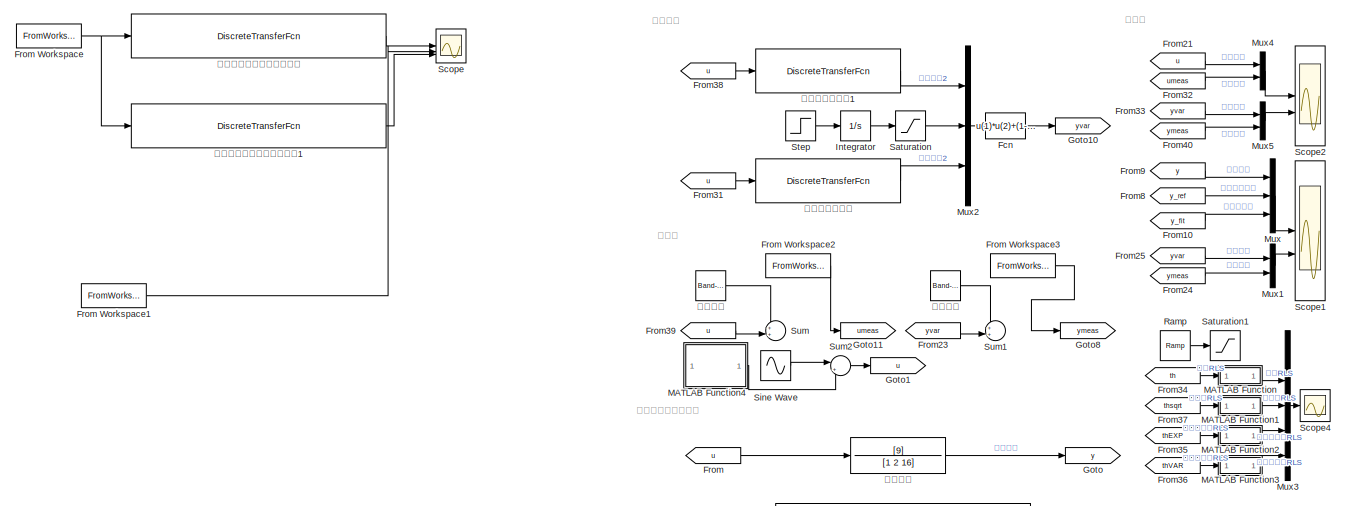
[diagram: root canvas - part 1/2, full width, top band]
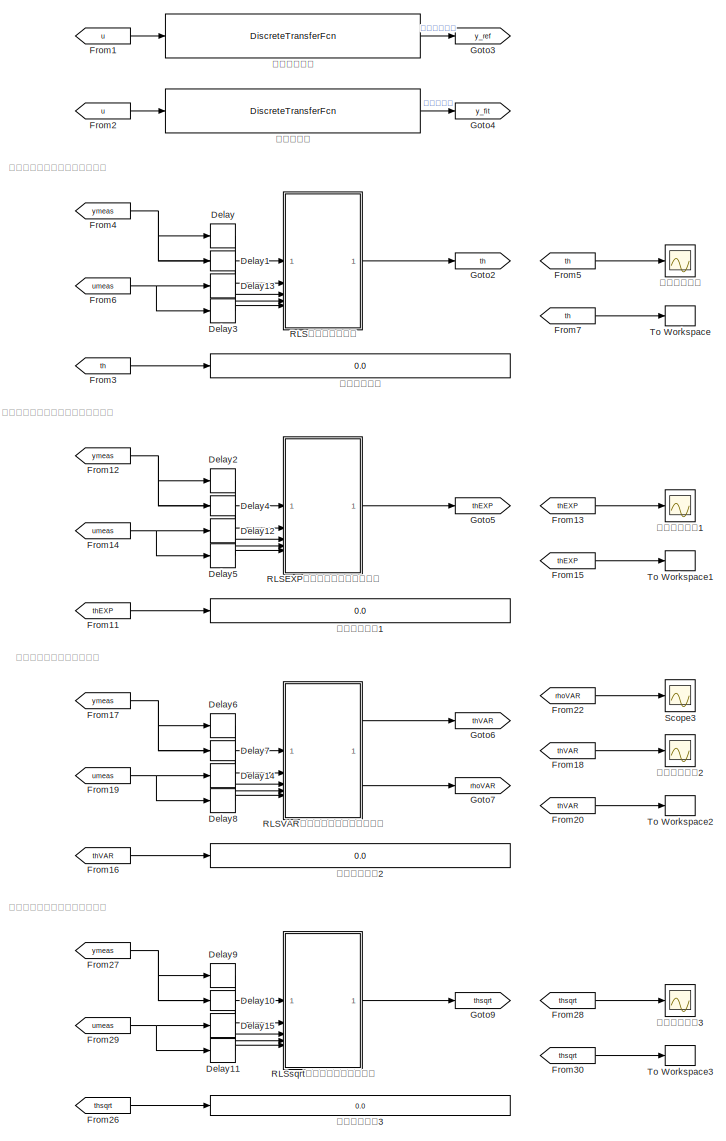
[diagram: root canvas - part 2/2, middle right region]
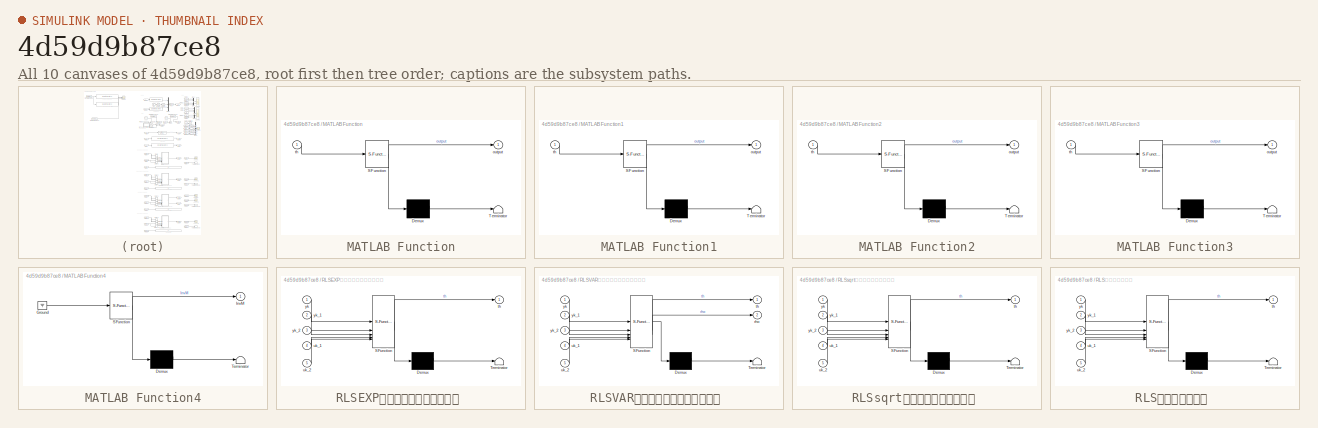
[diagram: thumbnail index - all 10 canvases of the model, root first then tree order]
MODEL slx_4d59d9b87ce8
KIND model
CONFIG AbsTol = auto
CONFIG EnableMultiTasking = off
CONFIG FixedStep = auto
CONFIG MaxStep = auto
CONFIG MinStep = auto
CONFIG RelTol = 1e-3
CONFIG SampleTimeConstraint = Unconstrained
CONFIG SolverName = VariableStepAuto
CONFIG StartTime = 0.0
CONFIG StopTime = 40
BLOCK [Delay] Delay
  DelayLength = 1
  InputPortMap = u0
  SampleTime = 0.01
BLOCK [Delay] Delay1
  InputPortMap = u0
  SampleTime = 0.01
BLOCK [Delay] Delay10
  InputPortMap = u0
  SampleTime = 0.01
BLOCK [Delay] Delay11
  InputPortMap = u0
  SampleTime = 0.01
BLOCK [Delay] Delay12
  DelayLength = 1
  InputPortMap = u0
  SampleTime = 0.01
BLOCK [Delay] Delay13
  DelayLength = 1
  InputPortMap = u0
  SampleTime = 0.01
BLOCK [Delay] Delay14
  DelayLength = 1
  InputPortMap = u0
  SampleTime = 0.01
BLOCK [Delay] Delay15
  DelayLength = 1
  InputPortMap = u0
  SampleTime = 0.01
BLOCK [Delay] Delay2
  DelayLength = 1
  InputPortMap = u0
  SampleTime = 0.01
BLOCK [Delay] Delay3
  InputPortMap = u0
  SampleTime = 0.01
BLOCK [Delay] Delay4
  InputPortMap = u0
  SampleTime = 0.01
BLOCK [Delay] Delay5
  InputPortMap = u0
  SampleTime = 0.01
BLOCK [Delay] Delay6
  DelayLength = 1
  InputPortMap = u0
  SampleTime = 0.01
BLOCK [Delay] Delay7
  InputPortMap = u0
  SampleTime = 0.01
BLOCK [Delay] Delay8
  InputPortMap = u0
  SampleTime = 0.01
BLOCK [Delay] Delay9
  DelayLength = 1
  InputPortMap = u0
  SampleTime = 0.01
BLOCK [Fcn] Fcn
  Expr = u(1)*u(2)+(1-u(2))*u(3)
BLOCK [From] From
  GotoTag = u
BLOCK [FromWorkspace] From Workspace
  VariableName = acc
BLOCK [FromWorkspace] From Workspace1
  VariableName = vel
BLOCK [FromWorkspace] From Workspace2
  VariableName = acc
BLOCK [FromWorkspace] From Workspace3
  VariableName = vel
BLOCK [From] From1
  GotoTag = u
BLOCK [From] From10
  GotoTag = y_fit
BLOCK [From] From11
  GotoTag = thEXP
BLOCK [From] From12
  GotoTag = ymeas
BLOCK [From] From13
  GotoTag = thEXP
BLOCK [From] From14
  GotoTag = umeas
BLOCK [From] From15
  GotoTag = thEXP
BLOCK [From] From16
  GotoTag = thVAR
BLOCK [From] From17
  GotoTag = ymeas
BLOCK [From] From18
  GotoTag = thVAR
BLOCK [From] From19
  GotoTag = umeas
BLOCK [From] From2
  GotoTag = u
BLOCK [From] From20
  GotoTag = thVAR
BLOCK [From] From21
  GotoTag = u
BLOCK [From] From22
  GotoTag = rhoVAR
BLOCK [From] From23
  GotoTag = yvar
BLOCK [From] From24
  GotoTag = ymeas
BLOCK [From] From25
  GotoTag = yvar
BLOCK [From] From26
  GotoTag = thsqrt
BLOCK [From] From27
  GotoTag = ymeas
BLOCK [From] From28
  GotoTag = thsqrt
BLOCK [From] From29
  GotoTag = umeas
BLOCK [From] From3
  GotoTag = th
BLOCK [From] From30
  GotoTag = thsqrt
BLOCK [From] From31
  GotoTag = u
BLOCK [From] From32
  GotoTag = umeas
BLOCK [From] From33
  GotoTag = yvar
BLOCK [From] From34
  GotoTag = th
BLOCK [From] From35
  GotoTag = thEXP
BLOCK [From] From36
  GotoTag = thVAR
BLOCK [From] From37
  GotoTag = thsqrt
BLOCK [From] From38
  GotoTag = u
BLOCK [From] From39
  GotoTag = u
BLOCK [From] From4
  GotoTag = ymeas
BLOCK [From] From40
  GotoTag = ymeas
BLOCK [From] From5
  GotoTag = th
BLOCK [From] From6
  GotoTag = umeas
BLOCK [From] From7
  GotoTag = th
BLOCK [From] From8
  GotoTag = y_ref
BLOCK [From] From9
  GotoTag = y
BLOCK [Goto] Goto
  GotoTag = y
BLOCK [Goto] Goto1
  GotoTag = u
BLOCK [Goto] Goto10
  GotoTag = yvar
BLOCK [Goto] Goto11
  GotoTag = umeas
BLOCK [Goto] Goto2
  GotoTag = th
BLOCK [Goto] Goto3
  GotoTag = y_ref
BLOCK [Goto] Goto4
  GotoTag = y_fit
BLOCK [Goto] Goto5
  GotoTag = thEXP
BLOCK [Goto] Goto6
  GotoTag = thVAR
BLOCK [Goto] Goto7
  GotoTag = rhoVAR
BLOCK [Goto] Goto8
  GotoTag = ymeas
BLOCK [Goto] Goto9
  GotoTag = thsqrt
BLOCK [Integrator] Integrator
BLOCK [SubSystem] MATLAB Function
  ErrorFcn = Stateflow.Translate.translate
  PermitHierarchicalResolution = ExplicitOnly
  SFBlockType = MATLAB Function
  TreatAsAtomicUnit = on
BLOCK [Demux] MATLAB Function/ Demux 
  Outputs = 1
BLOCK [S-Function] MATLAB Function/ SFunction 
  EnableBusSupport = on
  FunctionName = sf_sfun
  PortCounts = [1 2]
  SFcnIsStateOwnerBlock = off
  SFunctionDeploymentMode = off
  Tag = Stateflow S-Function 5
BLOCK [Terminator] MATLAB Function/ Terminator 
BLOCK [Outport] MATLAB Function/output
  VectorParamsAs1DForOutWhenUnconnected = off
BLOCK [Inport] MATLAB Function/th
BLOCK [SubSystem] MATLAB Function1
  ErrorFcn = Stateflow.Translate.translate
  PermitHierarchicalResolution = ExplicitOnly
  SFBlockType = MATLAB Function
  TreatAsAtomicUnit = on
BLOCK [Demux] MATLAB Function1/ Demux 
  Outputs = 1
BLOCK [S-Function] MATLAB Function1/ SFunction 
  EnableBusSupport = on
  FunctionName = sf_sfun
  PortCounts = [1 2]
  SFcnIsStateOwnerBlock = off
  SFunctionDeploymentMode = off
  Tag = Stateflow S-Function 6
BLOCK [Terminator] MATLAB Function1/ Terminator 
BLOCK [Outport] MATLAB Function1/output
  VectorParamsAs1DForOutWhenUnconnected = off
BLOCK [Inport] MATLAB Function1/th
BLOCK [SubSystem] MATLAB Function2
  ErrorFcn = Stateflow.Translate.translate
  PermitHierarchicalResolution = ExplicitOnly
  SFBlockType = MATLAB Function
  TreatAsAtomicUnit = on
BLOCK [Demux] MATLAB Function2/ Demux 
  Outputs = 1
BLOCK [S-Function] MATLAB Function2/ SFunction 
  EnableBusSupport = on
  FunctionName = sf_sfun
  PortCounts = [1 2]
  SFcnIsStateOwnerBlock = off
  SFunctionDeploymentMode = off
  Tag = Stateflow S-Function 7
BLOCK [Terminator] MATLAB Function2/ Terminator 
BLOCK [Outport] MATLAB Function2/output
  VectorParamsAs1DForOutWhenUnconnected = off
BLOCK [Inport] MATLAB Function2/th
BLOCK [SubSystem] MATLAB Function3
  ErrorFcn = Stateflow.Translate.translate
  PermitHierarchicalResolution = ExplicitOnly
  SFBlockType = MATLAB Function
  TreatAsAtomicUnit = on
BLOCK [Demux] MATLAB Function3/ Demux 
  Outputs = 1
BLOCK [S-Function] MATLAB Function3/ SFunction 
  EnableBusSupport = on
  FunctionName = sf_sfun
  PortCounts = [1 2]
  SFcnIsStateOwnerBlock = off
  SFunctionDeploymentMode = off
  Tag = Stateflow S-Function 8
BLOCK [Terminator] MATLAB Function3/ Terminator 
BLOCK [Outport] MATLAB Function3/output
  VectorParamsAs1DForOutWhenUnconnected = off
BLOCK [Inport] MATLAB Function3/th
BLOCK [SubSystem] MATLAB Function4
  ErrorFcn = Stateflow.Translate.translate
  PermitHierarchicalResolution = ExplicitOnly
  SFBlockType = MATLAB Function
  SystemSampleTime = 0.05
  TreatAsAtomicUnit = on
BLOCK [Demux] MATLAB Function4/ Demux 
  Outputs = 1
BLOCK [Ground] MATLAB Function4/ Ground 
BLOCK [S-Function] MATLAB Function4/ SFunction 
  EnableBusSupport = on
  FunctionName = sf_sfun
  PortCounts = [1 2]
  SFcnIsStateOwnerBlock = off
  SFunctionDeploymentMode = off
  Tag = Stateflow S-Function 9
BLOCK [Terminator] MATLAB Function4/ Terminator 
BLOCK [Outport] MATLAB Function4/InvM
  VectorParamsAs1DForOutWhenUnconnected = off
BLOCK [Mux] Mux
  DisplayOption = bar
  Inputs = 3
BLOCK [Mux] Mux1
  DisplayOption = bar
  Inputs = 2
BLOCK [Mux] Mux2
  DisplayOption = bar
  Inputs = 3
BLOCK [Mux] Mux3
  DisplayOption = bar
  Inputs = 5
BLOCK [Mux] Mux4
  DisplayOption = bar
  Inputs = 2
BLOCK [Mux] Mux5
  DisplayOption = bar
  Inputs = 2
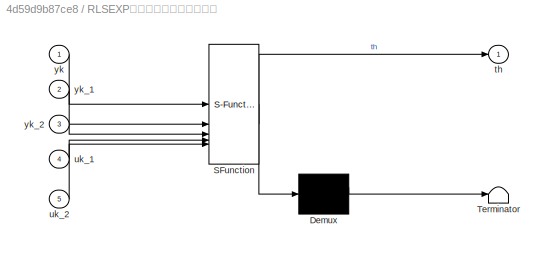
BLOCK [SubSystem] RLSEXP渐消记忆递推最小二乘法 
  ErrorFcn = Stateflow.Translate.translate
  PermitHierarchicalResolution = ExplicitOnly
  SFBlockType = MATLAB Function
  SystemSampleTime = 0.01
  TreatAsAtomicUnit = on
BLOCK [Demux] RLSEXP渐消记忆递推最小二乘法 / Demux 
  Outputs = 1
BLOCK [S-Function] RLSEXP渐消记忆递推最小二乘法 / SFunction 
  EnableBusSupport = on
  FunctionName = sf_sfun
  PortCounts = [5 2]
  SFcnIsStateOwnerBlock = off
  SFunctionDeploymentMode = off
  Tag = Stateflow S-Function 1
BLOCK [Terminator] RLSEXP渐消记忆递推最小二乘法 / Terminator 
BLOCK [Outport] RLSEXP渐消记忆递推最小二乘法 /th
  VectorParamsAs1DForOutWhenUnconnected = off
BLOCK [Inport] RLSEXP渐消记忆递推最小二乘法 /uk_1
  Port = 4
BLOCK [Inport] RLSEXP渐消记忆递推最小二乘法 /uk_2
  Port = 5
BLOCK [Inport] RLSEXP渐消记忆递推最小二乘法 /yk
BLOCK [Inport] RLSEXP渐消记忆递推最小二乘法 /yk_1
  Port = 2
BLOCK [Inport] RLSEXP渐消记忆递推最小二乘法 /yk_2
  Port = 3
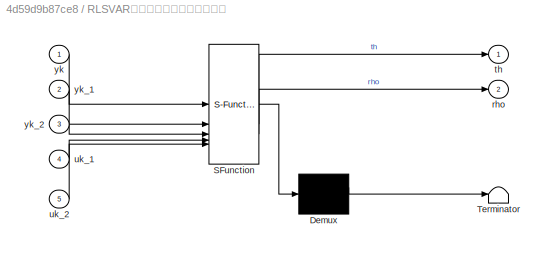
BLOCK [SubSystem] RLSVAR变遗忘因子递推最小二乘法 
  ErrorFcn = Stateflow.Translate.translate
  PermitHierarchicalResolution = ExplicitOnly
  SFBlockType = MATLAB Function
  SystemSampleTime = 0.01
  TreatAsAtomicUnit = on
BLOCK [Demux] RLSVAR变遗忘因子递推最小二乘法 / Demux 
  Outputs = 1
BLOCK [S-Function] RLSVAR变遗忘因子递推最小二乘法 / SFunction 
  EnableBusSupport = on
  FunctionName = sf_sfun
  PortCounts = [5 3]
  SFcnIsStateOwnerBlock = off
  SFunctionDeploymentMode = off
  Tag = Stateflow S-Function 3
BLOCK [Terminator] RLSVAR变遗忘因子递推最小二乘法 / Terminator 
BLOCK [Outport] RLSVAR变遗忘因子递推最小二乘法 /rho
  Port = 2
  VectorParamsAs1DForOutWhenUnconnected = off
BLOCK [Outport] RLSVAR变遗忘因子递推最小二乘法 /th
  VectorParamsAs1DForOutWhenUnconnected = off
BLOCK [Inport] RLSVAR变遗忘因子递推最小二乘法 /uk_1
  Port = 4
BLOCK [Inport] RLSVAR变遗忘因子递推最小二乘法 /uk_2
  Port = 5
BLOCK [Inport] RLSVAR变遗忘因子递推最小二乘法 /yk
BLOCK [Inport] RLSVAR变遗忘因子递推最小二乘法 /yk_1
  Port = 2
BLOCK [Inport] RLSVAR变遗忘因子递推最小二乘法 /yk_2
  Port = 3
BLOCK [SubSystem] RLSsqrt平方根递推最小二乘法 
  ErrorFcn = Stateflow.Translate.translate
  PermitHierarchicalResolution = ExplicitOnly
  SFBlockType = MATLAB Function
  SystemSampleTime = 0.01
  TreatAsAtomicUnit = on
BLOCK [Demux] RLSsqrt平方根递推最小二乘法 / Demux 
  Outputs = 1
BLOCK [S-Function] RLSsqrt平方根递推最小二乘法 / SFunction 
  EnableBusSupport = on
  FunctionName = sf_sfun
  PortCounts = [5 2]
  SFcnIsStateOwnerBlock = off
  SFunctionDeploymentMode = off
  Tag = Stateflow S-Function 4
BLOCK [Terminator] RLSsqrt平方根递推最小二乘法 / Terminator 
BLOCK [Outport] RLSsqrt平方根递推最小二乘法 /th
  VectorParamsAs1DForOutWhenUnconnected = off
BLOCK [Inport] RLSsqrt平方根递推最小二乘法 /uk_1
  Port = 4
BLOCK [Inport] RLSsqrt平方根递推最小二乘法 /uk_2
  Port = 5
BLOCK [Inport] RLSsqrt平方根递推最小二乘法 /yk
BLOCK [Inport] RLSsqrt平方根递推最小二乘法 /yk_1
  Port = 2
BLOCK [Inport] RLSsqrt平方根递推最小二乘法 /yk_2
  Port = 3
BLOCK [SubSystem] RLS递推最小二乘法 
  ErrorFcn = Stateflow.Translate.translate
  PermitHierarchicalResolution = ExplicitOnly
  SFBlockType = MATLAB Function
  SystemSampleTime = 0.01
  TreatAsAtomicUnit = on
BLOCK [Demux] RLS递推最小二乘法 / Demux 
  Outputs = 1
BLOCK [S-Function] RLS递推最小二乘法 / SFunction 
  EnableBusSupport = on
  FunctionName = sf_sfun
  PortCounts = [5 2]
  SFcnIsStateOwnerBlock = off
  SFunctionDeploymentMode = off
  Tag = Stateflow S-Function 2
BLOCK [Terminator] RLS递推最小二乘法 / Terminator 
BLOCK [Outport] RLS递推最小二乘法 /th
  VectorParamsAs1DForOutWhenUnconnected = off
BLOCK [Inport] RLS递推最小二乘法 /uk_1
  Port = 4
BLOCK [Inport] RLS递推最小二乘法 /uk_2
  Port = 5
BLOCK [Inport] RLS递推最小二乘法 /yk
BLOCK [Inport] RLS递推最小二乘法 /yk_1
  Port = 2
BLOCK [Inport] RLS递推最小二乘法 /yk_2
  Port = 3
BLOCK [Reference] Ramp  REF=simulink/Sources/Ramp
  SourceBlock = simulink/Sources/Ramp
  SourceType = Ramp
BLOCK [Saturate] Saturation
  LowerLimit = 0
  UpperLimit = 1
BLOCK [Saturate] Saturation1
  LowerLimit = 1.8
  UpperLimit = 5
BLOCK [Scope] Scope
  Floating = off
  NumInputPorts = 3
  ScopeSpecificationString = Simulink.scopes.TimeScopeBlockCfg('CurrentConfiguration', extmgr.ConfigurationSet(extmgr.Configuration('Core','General UI',true),extmgr.Configuration('Core','Source UI',true),extmgr.Configuration('Sources','WiredSimulink',true),extmgr.Configuration('Visuals','Time Domain',true,'SerializedDisplays',{struct('MinYLimReal','-0.37226','MaxYLimReal','3.29905','YLabelReal','','MinYLimMag','0.00000','MaxY...<+1465ch>
BLOCK [Scope] Scope1
  Floating = off
  NumInputPorts = 2
  ScopeSpecificationString = Simulink.scopes.TimeScopeBlockCfg('CurrentConfiguration', extmgr.ConfigurationSet(extmgr.Configuration('Core','General UI',true),extmgr.Configuration('Core','Source UI',true),extmgr.Configuration('Sources','WiredSimulink',true,'DataLoggingVariableName','ScopeData1'),extmgr.Configuration('Visuals','Time Domain',true,'SerializedDisplays',{struct('MinYLimReal','-0.74555','MaxYLimReal','0.76258','YLab...<+2046ch>
BLOCK [Scope] Scope2
  Floating = off
  NumInputPorts = 2
  ScopeSpecificationString = Simulink.scopes.TimeScopeBlockCfg('CurrentConfiguration', extmgr.ConfigurationSet(extmgr.Configuration('Core','General UI',true,'FigureColor',[1 1 1]),extmgr.Configuration('Core','Source UI',true),extmgr.Configuration('Sources','WiredSimulink',true,'DataLoggingVariableName','ScopeData2'),extmgr.Configuration('Visuals','Time Domain',true,'SerializedDisplays',{struct('MinYLimReal','-8.75','MaxYLimRe...<+2555ch>
BLOCK [Scope] Scope3
  Floating = off
  NumInputPorts = 1
  ScopeSpecificationString = Simulink.scopes.TimeScopeBlockCfg('CurrentConfiguration', extmgr.ConfigurationSet(extmgr.Configuration('Core','General UI',true),extmgr.Configuration('Core','Source UI',true),extmgr.Configuration('Sources','WiredSimulink',true,'DataLoggingVariableName','ScopeData3'),extmgr.Configuration('Visuals','Time Domain',true,'SerializedDisplays',{struct('MinYLimReal','0.9775','MaxYLimReal','1.0025','YLabelR...<+1383ch>
BLOCK [Scope] Scope4
  Floating = off
  NumInputPorts = 1
  ScopeSpecificationString = Simulink.scopes.TimeScopeBlockCfg('CurrentConfiguration', extmgr.ConfigurationSet(extmgr.Configuration('Core','General UI',true,'FigureColor',[1 1 1]),extmgr.Configuration('Core','Source UI',true),extmgr.Configuration('Sources','WiredSimulink',true,'DataLoggingVariableName','ScopeData4'),extmgr.Configuration('Visuals','Time Domain',true,'SerializedDisplays',{struct('MinYLimReal','-0.14345','MaxYLi...<+2213ch>
BLOCK [Sin] Sine Wave
  Amplitude = 2
  SampleTime = 0
BLOCK [Step] Step
  SampleTime = 0
  Time = 4.5
BLOCK [Sum] Sum
  Inputs = ++|
BLOCK [Sum] Sum1
  Inputs = ++|
BLOCK [Sum] Sum2
  Inputs = |++
BLOCK [ToWorkspace] To Workspace
  FixptAsFi = on
  MaxDataPoints = inf
  SampleTime = -1
  SaveFormat = Timeseries
  VariableName = th
BLOCK [ToWorkspace] To Workspace1
  FixptAsFi = on
  MaxDataPoints = inf
  SampleTime = -1
  SaveFormat = Timeseries
  VariableName = thEXP
BLOCK [ToWorkspace] To Workspace2
  FixptAsFi = on
  MaxDataPoints = inf
  SampleTime = -1
  SaveFormat = Timeseries
  VariableName = thVAR
BLOCK [ToWorkspace] To Workspace3
  FixptAsFi = on
  MaxDataPoints = inf
  SampleTime = -1
  SaveFormat = Timeseries
  VariableName = thsqrt
BLOCK [Display] 参数拟合结果
  Decimation = 1
BLOCK [Display] 参数拟合结果1
  Decimation = 1
BLOCK [Display] 参数拟合结果2
  Decimation = 1
BLOCK [Display] 参数拟合结果3
  Decimation = 1
BLOCK [Scope] 参数收敛过程
  Floating = off
  NumInputPorts = 1
  ScopeSpecificationString = Simulink.scopes.TimeScopeBlockCfg('CurrentConfiguration', extmgr.ConfigurationSet(extmgr.Configuration('Core','General UI',true),extmgr.Configuration('Core','Source UI',true),extmgr.Configuration('Sources','WiredSimulink',true,'DataLoggingVariableName','ScopeData5'),extmgr.Configuration('Visuals','Time Domain',true,'SerializedDisplays',{struct('MinYLimReal','-3.86082','MaxYLimReal','4.01953','YLab...<+1421ch>
BLOCK [Scope] 参数收敛过程1
  Floating = off
  NumInputPorts = 1
  ScopeSpecificationString = Simulink.scopes.TimeScopeBlockCfg('CurrentConfiguration', extmgr.ConfigurationSet(extmgr.Configuration('Core','General UI',true),extmgr.Configuration('Core','Source UI',true),extmgr.Configuration('Sources','WiredSimulink',true,'DataLoggingVariableName','ScopeData6'),extmgr.Configuration('Visuals','Time Domain',true,'SerializedDisplays',{struct('MinYLimReal','-3.86153','MaxYLimReal','4.02006','YLab...<+1421ch>
BLOCK [Scope] 参数收敛过程2
  Floating = off
  NumInputPorts = 1
  ScopeSpecificationString = Simulink.scopes.TimeScopeBlockCfg('CurrentConfiguration', extmgr.ConfigurationSet(extmgr.Configuration('Core','General UI',true),extmgr.Configuration('Core','Source UI',true),extmgr.Configuration('Sources','WiredSimulink',true,'DataLoggingVariableName','ScopeData7'),extmgr.Configuration('Visuals','Time Domain',true,'SerializedDisplays',{struct('MinYLimReal','-1.21549','MaxYLimReal','2.17387','YLab...<+1421ch>
BLOCK [Scope] 参数收敛过程3
  Floating = off
  NumInputPorts = 1
  ScopeSpecificationString = Simulink.scopes.TimeScopeBlockCfg('CurrentConfiguration', extmgr.ConfigurationSet(extmgr.Configuration('Core','General UI',true),extmgr.Configuration('Core','Source UI',true),extmgr.Configuration('Sources','WiredSimulink',true,'DataLoggingVariableName','ScopeData8'),extmgr.Configuration('Visuals','Time Domain',true,'SerializedDisplays',{struct('MinYLimReal','-1.17033','MaxYLimReal','2.11411','YLab...<+1421ch>
BLOCK [DiscreteTransferFcn] 参考答案系统
  Denominator = [1 -1.978614778372775 0.980198673306755]
  InputPortMap = u0
  Numerator = [4.469554209811618e-04 4.439854793829184e-04]
BLOCK [DiscreteTransferFcn] 另一个真实系统
  Denominator = [1 -1.5 0.7]
  InputPortMap = u0
  Numerator = [0 1 0.5]
BLOCK [DiscreteTransferFcn] 另一个真实系统1
  Denominator = [1 -1.3 0.8]
  InputPortMap = u0
  Numerator = [0 1 0.3]
BLOCK [DiscreteTransferFcn] 拟合的系统
  Denominator = [1 -1.978608122603462 0.980191787061529]
  InputPortMap = u0
  Numerator = [8.831734995497340e-04 7.630841889239913e-06]
BLOCK [DiscreteTransferFcn] 拟合的车辆纵向动力学系统
  Denominator = [1 -1.657 0.6594]
  InputPortMap = u0
  Numerator = [-0.2085 0.2207]
BLOCK [DiscreteTransferFcn] 拟合的车辆纵向动力学系统1
  Denominator = [1 -1.648 0.6541]
  InputPortMap = u0
  Numerator = [-0.5085 0.5523]
BLOCK [TransferFcn] 真实系统
  Denominator = [1 2 16]
  Numerator = [9]
BLOCK [Reference] 输入噪声  REF=simulink/Sources/Band-Limited
White Noise
  SourceBlock = simulink/Sources/Band-Limited\nWhite Noise
  SourceType = Band-Limited White Noise.
BLOCK [Reference] 量测噪声  REF=simulink/Sources/Band-Limited
White Noise
  SourceBlock = simulink/Sources/Band-Limited\nWhite Noise
  SourceType = Band-Limited White Noise.
ANNOTATION (root): 变遗忘因子递推最小二乘法
ANNOTATION (root): 操作台
ANNOTATION (root): 时变系统
ANNOTATION (root): 渐消记忆（指数窗）递推最小二乘法
ANNOTATION (root): 真实系统与拟合模型
ANNOTATION (root): 观察区
ANNOTATION (root): 递推最小二乘法（平方根算法）
ANNOTATION (root): 递推最小二乘法（最经典形式）
LINE Delay10:1 -> RLSsqrt平方根递推最小二乘法 :3
LINE Delay11:1 -> RLSsqrt平方根递推最小二乘法 :5
LINE Delay12:1 -> RLSEXP渐消记忆递推最小二乘法 :4
LINE Delay13:1 -> RLS递推最小二乘法 :4
LINE Delay14:1 -> RLSVAR变遗忘因子递推最小二乘法 :4
LINE Delay15:1 -> RLSsqrt平方根递推最小二乘法 :4
LINE Delay1:1 -> RLS递推最小二乘法 :3
LINE Delay2:1 -> RLSEXP渐消记忆递推最小二乘法 :2
LINE Delay3:1 -> RLS递推最小二乘法 :5
LINE Delay4:1 -> RLSEXP渐消记忆递推最小二乘法 :3
LINE Delay5:1 -> RLSEXP渐消记忆递推最小二乘法 :5
LINE Delay6:1 -> RLSVAR变遗忘因子递推最小二乘法 :2
LINE Delay7:1 -> RLSVAR变遗忘因子递推最小二乘法 :3
LINE Delay8:1 -> RLSVAR变遗忘因子递推最小二乘法 :5
LINE Delay9:1 -> RLSsqrt平方根递推最小二乘法 :2
LINE Delay:1 -> RLS递推最小二乘法 :2
LINE Fcn:1 -> Goto10:1
LINE From Workspace1:1 -> Scope:2
LINE From Workspace2:1 -> Goto11:1
LINE From Workspace3:1 -> Goto8:1
NET From Workspace:1 -> 拟合的车辆纵向动力学系统1:1, 拟合的车辆纵向动力学系统:1
LINE From10:1 -> Mux:3
LINE From11:1 -> 参数拟合结果1:1
NET From12:1 -> Delay2:1, Delay4:1, RLSEXP渐消记忆递推最小二乘法 :1
LINE From13:1 -> 参数收敛过程1:1
NET From14:1 -> Delay12:1, Delay5:1
LINE From15:1 -> To Workspace1:1
LINE From16:1 -> 参数拟合结果2:1
NET From17:1 -> Delay6:1, Delay7:1, RLSVAR变遗忘因子递推最小二乘法 :1
LINE From18:1 -> 参数收敛过程2:1
NET From19:1 -> Delay14:1, Delay8:1
LINE From1:1 -> 参考答案系统:1
LINE From20:1 -> To Workspace2:1
LINE From21:1 -> Mux4:1
LINE From22:1 -> Scope3:1
LINE From23:1 -> Sum1:2
LINE From24:1 -> Mux1:2
LINE From25:1 -> Mux1:1
LINE From26:1 -> 参数拟合结果3:1
NET From27:1 -> Delay10:1, Delay9:1, RLSsqrt平方根递推最小二乘法 :1
LINE From28:1 -> 参数收敛过程3:1
NET From29:1 -> Delay11:1, Delay15:1
LINE From2:1 -> 拟合的系统:1
LINE From30:1 -> To Workspace3:1
LINE From31:1 -> 另一个真实系统:1
LINE From32:1 -> Mux4:2
LINE From33:1 -> Mux5:1
LINE From34:1 -> MATLAB Function:1
LINE From35:1 -> MATLAB Function2:1
LINE From36:1 -> MATLAB Function3:1
LINE From37:1 -> MATLAB Function1:1
LINE From38:1 -> 另一个真实系统1:1
LINE From39:1 -> Sum:2
LINE From3:1 -> 参数拟合结果:1
LINE From40:1 -> Mux5:2
NET From4:1 -> Delay1:1, Delay:1, RLS递推最小二乘法 :1
LINE From5:1 -> 参数收敛过程:1
NET From6:1 -> Delay13:1, Delay3:1
LINE From7:1 -> To Workspace:1
LINE From8:1 -> Mux:2
LINE From9:1 -> Mux:1
LINE From:1 -> 真实系统:1
LINE Integrator:1 -> Saturation:1
LINE MATLAB Function1:1 -> Mux3:3
LINE MATLAB Function2:1 -> Mux3:4
LINE MATLAB Function3:1 -> Mux3:5
LINE MATLAB Function4:1 -> Sum2:2
LINE MATLAB Function:1 -> Mux3:2
LINE Mux1:1 -> Scope1:2
LINE Mux2:1 -> Fcn:1
LINE Mux3:1 -> Scope4:1
LINE Mux4:1 -> Scope2:1
LINE Mux5:1 -> Scope2:2
LINE Mux:1 -> Scope1:1
LINE RLSEXP渐消记忆递推最小二乘法 :1 -> Goto5:1
LINE RLSVAR变遗忘因子递推最小二乘法 :1 -> Goto6:1
LINE RLSVAR变遗忘因子递推最小二乘法 :2 -> Goto7:1
LINE RLSsqrt平方根递推最小二乘法 :1 -> Goto9:1
LINE RLS递推最小二乘法 :1 -> Goto2:1
LINE Ramp:1 -> Saturation1:1
LINE Saturation:1 -> Mux2:2
LINE Sine Wave:1 -> Sum2:1
LINE Step:1 -> Integrator:1
LINE Sum2:1 -> Goto1:1
LINE 参考答案系统:1 -> Goto3:1
LINE 另一个真实系统1:1 -> Mux2:1
LINE 另一个真实系统:1 -> Mux2:3
LINE 拟合的系统:1 -> Goto4:1
LINE 拟合的车辆纵向动力学系统1:1 -> Scope:3
LINE 拟合的车辆纵向动力学系统:1 -> Scope:1
LINE 真实系统:1 -> Goto:1
LINE 输入噪声:1 -> Sum:1
LINE 量测噪声:1 -> Sum1:1
note: NET lines group one-source signal fan-out (src -> all destinations, sorted); 1:1 wires keep LINE
CHART RLSEXP渐消记忆递推最小二乘法
 states=1 transitions=1
  STATE_LABEL 'eML_blk_kernel()'
  STATE_LABEL "SCRIPT:\nfunction th = RLSEXP(yk,yk_1,yk_2,uk_1,uk_2)\n%选取遗忘因子的准则：rho=1-1/N,N为想要记忆的历史数据长度\n%比如N=100，则rho=0.99；\npersistent th0 P0 rho\nif isempty(th0)\n    th0=zeros(4,1);\n    P0=eye(4)*2e3;\n    rho=0.99;\nend\nfai=[yk_1,yk_2,uk_1,uk_2]';\n\nth=th0+P0*fai/(fai'*P0*fai+rho)*(yk-fai'*th0);\nP0=(P0-P0*(fai*fai')*P0/(fai'*P0*fai+1))/rho;\nth0=th;\n\nend"
CHART RLS递推最小二乘法
 states=1 transitions=1
  STATE_LABEL 'eML_blk_kernel()'
  STATE_LABEL "SCRIPT:\nfunction th = RLS(yk,yk_1,yk_2,uk_1,uk_2)\npersistent th0 P0\nif isempty(th0)\n    th0=zeros(4,1);\n    P0=eye(4)*2e3;\nend\nfai=[yk_1,yk_2,uk_1,uk_2]';\n\nth=th0+P0*fai/(fai'*P0*fai+1)*(yk-fai'*th0);\nP0=P0-P0*(fai*fai')*P0/(fai'*P0*fai+1);\nth0=th;\n\nend"
CHART RLSVAR变遗忘因子递推最小二乘法
 states=1 transitions=1
  STATE_LABEL 'eML_blk_kernel()'
  STATE_LABEL "SCRIPT:\nfunction [th,rho] = RLSVAR(yk,yk_1,yk_2,uk_1,uk_2)\n\npersistent th0 P0 Sigma rhomin\nif isempty(th0)\n    th0=zeros(4,1);\n    P0=eye(4)*2e3;\n    N=500;      %一般记忆步长\n    Nmin=50;    %最小记忆步长\n    sig02=0.02; %观察噪声方差\n    Sigma=sig02*N;\n    rhomin=1-1/Nmin;\nend\nfai=[yk_1,yk_2,uk_1,uk_2]';\nek=(yk-fai'*th0);           %计算本步预测误差\nK=P0*fai/(fai'*P0*fai+1);   %计算增益\nth=th0+K*ek;                %修正估计\nrho=...<+161ch>"
CHART RLSsqrt平方根递推最小二乘法
 states=1 transitions=1
  STATE_LABEL 'eML_blk_kernel()'
  STATE_LABEL "SCRIPT:\nfunction th = RLSsqrt(yk,yk_1,yk_2,uk_1,uk_2)\npersistent th0 S0\nif isempty(th0)\n    th0=zeros(4,1);\n    S0=eye(4)*sqrt(2e3);\nend\nfai=[yk_1,yk_2,uk_1,uk_2]';%构造向量fai\nf=S0'*fai;\ng=1/(f'*f+1);\na=1/(1+sqrt(g));\nK=S0*f*g;\nth=th0+K*(yk-fai'*th0);\nS0=S0*(eye(4)-g*a*(f*f'));\nth0=th;\n\nend"
CHART MATLAB Function states=1 transitions=1
  STATE_LABEL 'eML_blk_kernel()'
  STATE_LABEL 'SCRIPT:\nfunction output = fcn(th)\noutput=sum(th);\nend\n'
CHART MATLAB Function1 states=1 transitions=1
  STATE_LABEL 'eML_blk_kernel()'
  STATE_LABEL 'SCRIPT:\nfunction output = fcn(th)\noutput=sum(th);\nend\n'
CHART MATLAB Function2 states=1 transitions=1
  STATE_LABEL 'eML_blk_kernel()'
  STATE_LABEL 'SCRIPT:\nfunction output = fcn(th)\noutput=sum(th);\nend\n'
CHART MATLAB Function3 states=1 transitions=1
  STATE_LABEL 'eML_blk_kernel()'
  STATE_LABEL 'SCRIPT:\nfunction output = fcn(th)\noutput=sum(th);\nend\n'
CHART MATLAB Function4 states=1 transitions=1
  STATE_LABEL 'eML_blk_kernel()'
  STATE_LABEL "SCRIPT:\nfunction InvM = InvMseries()\ncoder.extrinsic('idinput')\npersistent ms i S gain\nif isempty(ms)\n   i=1;\n   n=15;\n   p=2^n-1;\n   S=false;\n   ms=zeros(p,1);\n   ms0=idinput(p,'prbs',[],[0 1]);\n   ms(1:end,1)=ms0(1:p,1);\n   gain=5;\nend\nflag=true;\nif ms(i)==0\n    flag=false;\nend\ninvm=xor(S,flag);\nif invm\n    InvM=gain;\nelse\n    InvM=-gain;\nend\n\ni=i+1;\nS=not(S);\n\n\nend\n"
CHART  states=0 transitions=0
CHART  states=0 transitions=0
CHART  states=0 transitions=0
CHART  states=0 transitions=0
CHART  states=0 transitions=0
CHART  states=0 transitions=0
CHART  states=0 transitions=0
CHART  states=0 transitions=0
CHART  states=0 transitions=0
